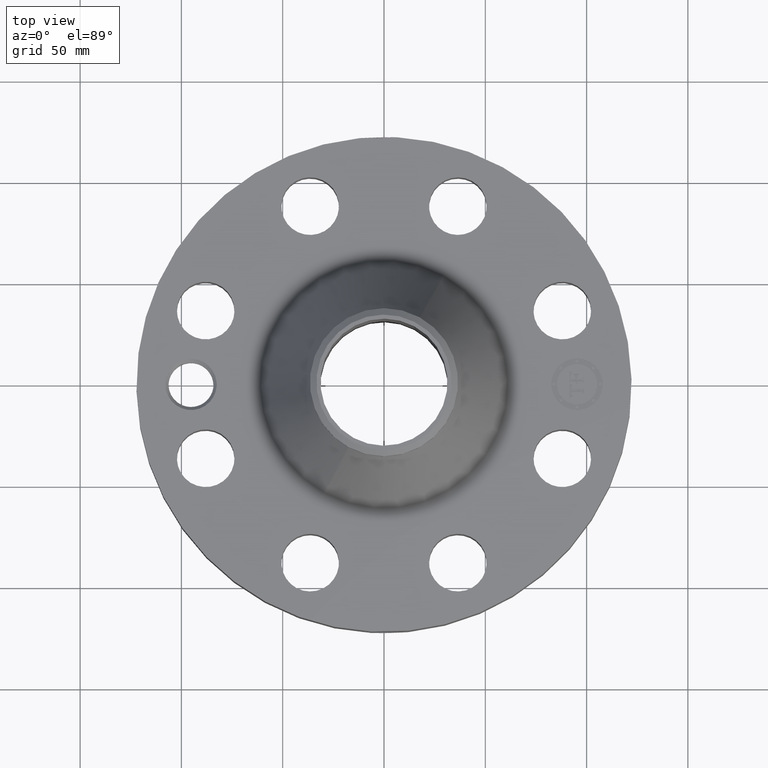
[diagram: clean part render]
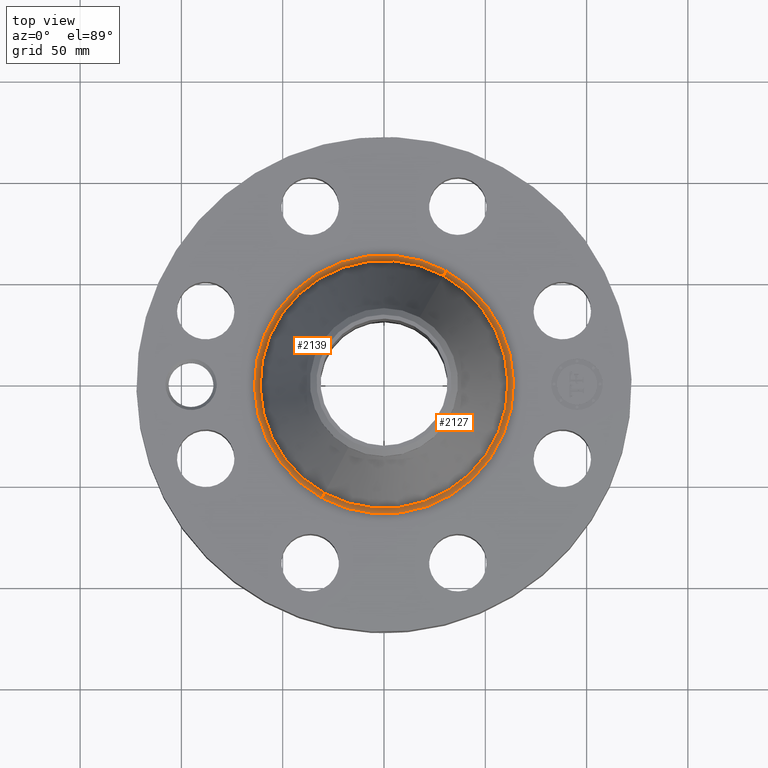
[diagram: same view with one multi-face feature highlighted, each face labeled with its STEP entity id]
A machine part, top view. The highlighted faces form ONE feature: a constant-radius fillet chain: 2 tangent blend faces with common blend radius 3.048 mm. The faces share edges in the B-rep.
Their STEP definitions:
[1] entity #2139 (Torus):
#593=AXIS2_PLACEMENT_3D('Circle Axis2P3D',#591,#592,$) ;
#2100=AXIS2_PLACEMENT_3D('Torus Axis2P3D',#2097,#2098,#2099) ;
#2104=AXIS2_PLACEMENT_3D('Circle Axis2P3D',#2102,#2103,$) ;
#2118=AXIS2_PLACEMENT_3D('Circle Axis2P3D',#2116,#2117,$) ;
#2130=AXIS2_PLACEMENT_3D('Circle Axis2P3D',#2128,#2129,$) ;
#591=CARTESIAN_POINT('Axis2P3D Location',(0.,0.,1.87000000001)) ;
#595=CARTESIAN_POINT('Vertex',(-1.20660746065,-2.20868014165,1.87000000001)) ;
#597=CARTESIAN_POINT('Vertex',(1.20660746065,2.20868014165,1.87000000001)) ;
#2097=CARTESIAN_POINT('Axis2P3D Location',(0.,0.,1.99000000001)) ;
#2102=CARTESIAN_POINT('Axis2P3D Location',(1.20660746065,2.20868014165,1.99000000001)) ;
#2106=CARTESIAN_POINT('Vertex',(1.15437224008,2.11306421175,1.93971008371)) ;
#2113=CARTESIAN_POINT('Vertex',(-1.15437224008,-2.11306421175,1.93971008371)) ;
#2116=CARTESIAN_POINT('Axis2P3D Location',(-1.20660746065,-2.20868014165,1.99000000001)) ;
#2128=CARTESIAN_POINT('Axis2P3D Location',(0.,0.,1.93971008371)) ;
#592=DIRECTION('Axis2P3D Direction',(0.,0.,-0.0393700787402)) ;
#2098=DIRECTION('Axis2P3D Direction',(0.,0.,-0.0393700787402)) ;
#2099=DIRECTION('Axis2P3D XDirection',(-0.0188750212049,-0.0345504945626,0.)) ;
#2103=DIRECTION('Axis2P3D Direction',(-0.0345504945626,0.0188750212049,0.)) ;
#2117=DIRECTION('Axis2P3D Direction',(0.0345504945626,-0.0188750212049,0.)) ;
#2129=DIRECTION('Axis2P3D Direction',(0.,0.,-0.0393700787402)) ;
#2134=ORIENTED_EDGE('',*,*,#599,.F.) ;
#2135=ORIENTED_EDGE('',*,*,#2120,.T.) ;
#2136=ORIENTED_EDGE('',*,*,#2132,.T.) ;
#2137=ORIENTED_EDGE('',*,*,#2108,.F.) ;
#2139=ADVANCED_FACE('PartBody',(#2138),#2101,.F.) ;
#594=CIRCLE('generated circle',#593,2.51677760882) ;
#2105=CIRCLE('generated circle',#2104,0.12) ;
#2119=CIRCLE('generated circle',#2118,0.12) ;
#2131=CIRCLE('generated circle',#2130,2.40782383734) ;
#2101=TOROIDAL_SURFACE('homeo Torus',#2100,2.51677760882,0.12) ;
#599=EDGE_CURVE('',#596,#598,#594,.T.) ;
#2108=EDGE_CURVE('',#598,#2107,#2105,.T.) ;
#2120=EDGE_CURVE('',#596,#2114,#2119,.T.) ;
#2132=EDGE_CURVE('',#2114,#2107,#2131,.T.) ;
#2133=EDGE_LOOP('',(#2134,#2135,#2136,#2137)) ;
#2138=FACE_OUTER_BOUND('',#2133,.T.) ;
#596=VERTEX_POINT('',#595) ;
#598=VERTEX_POINT('',#597) ;
#2107=VERTEX_POINT('',#2106) ;
#2114=VERTEX_POINT('',#2113) ;
[2] entity #2127 (Torus):
#602=AXIS2_PLACEMENT_3D('Circle Axis2P3D',#600,#601,$) ;
#2100=AXIS2_PLACEMENT_3D('Torus Axis2P3D',#2097,#2098,#2099) ;
#2104=AXIS2_PLACEMENT_3D('Circle Axis2P3D',#2102,#2103,$) ;
#2111=AXIS2_PLACEMENT_3D('Circle Axis2P3D',#2109,#2110,$) ;
#2118=AXIS2_PLACEMENT_3D('Circle Axis2P3D',#2116,#2117,$) ;
#595=CARTESIAN_POINT('Vertex',(-1.20660746065,-2.20868014165,1.87000000001)) ;
#597=CARTESIAN_POINT('Vertex',(1.20660746065,2.20868014165,1.87000000001)) ;
#600=CARTESIAN_POINT('Axis2P3D Location',(0.,0.,1.87000000001)) ;
#2097=CARTESIAN_POINT('Axis2P3D Location',(0.,0.,1.99000000001)) ;
#2102=CARTESIAN_POINT('Axis2P3D Location',(1.20660746065,2.20868014165,1.99000000001)) ;
#2106=CARTESIAN_POINT('Vertex',(1.15437224008,2.11306421175,1.93971008371)) ;
#2109=CARTESIAN_POINT('Axis2P3D Location',(0.,0.,1.93971008371)) ;
#2113=CARTESIAN_POINT('Vertex',(-1.15437224008,-2.11306421175,1.93971008371)) ;
#2116=CARTESIAN_POINT('Axis2P3D Location',(-1.20660746065,-2.20868014165,1.99000000001)) ;
#601=DIRECTION('Axis2P3D Direction',(0.,0.,-0.0393700787402)) ;
#2098=DIRECTION('Axis2P3D Direction',(0.,0.,-0.0393700787402)) ;
#2099=DIRECTION('Axis2P3D XDirection',(-0.0188750212049,-0.0345504945626,0.)) ;
#2103=DIRECTION('Axis2P3D Direction',(-0.0345504945626,0.0188750212049,0.)) ;
#2110=DIRECTION('Axis2P3D Direction',(0.,0.,-0.0393700787402)) ;
#2117=DIRECTION('Axis2P3D Direction',(0.0345504945626,-0.0188750212049,0.)) ;
#2122=ORIENTED_EDGE('',*,*,#604,.F.) ;
#2123=ORIENTED_EDGE('',*,*,#2108,.T.) ;
#2124=ORIENTED_EDGE('',*,*,#2115,.T.) ;
#2125=ORIENTED_EDGE('',*,*,#2120,.F.) ;
#2127=ADVANCED_FACE('PartBody',(#2126),#2101,.F.) ;
#603=CIRCLE('generated circle',#602,2.51677760882) ;
#2105=CIRCLE('generated circle',#2104,0.12) ;
#2112=CIRCLE('generated circle',#2111,2.40782383734) ;
#2119=CIRCLE('generated circle',#2118,0.12) ;
#2101=TOROIDAL_SURFACE('homeo Torus',#2100,2.51677760882,0.12) ;
#604=EDGE_CURVE('',#598,#596,#603,.T.) ;
#2108=EDGE_CURVE('',#598,#2107,#2105,.T.) ;
#2115=EDGE_CURVE('',#2107,#2114,#2112,.T.) ;
#2120=EDGE_CURVE('',#596,#2114,#2119,.T.) ;
#2121=EDGE_LOOP('',(#2122,#2123,#2124,#2125)) ;
#2126=FACE_OUTER_BOUND('',#2121,.T.) ;
#596=VERTEX_POINT('',#595) ;
#598=VERTEX_POINT('',#597) ;
#2107=VERTEX_POINT('',#2106) ;
#2114=VERTEX_POINT('',#2113) ;